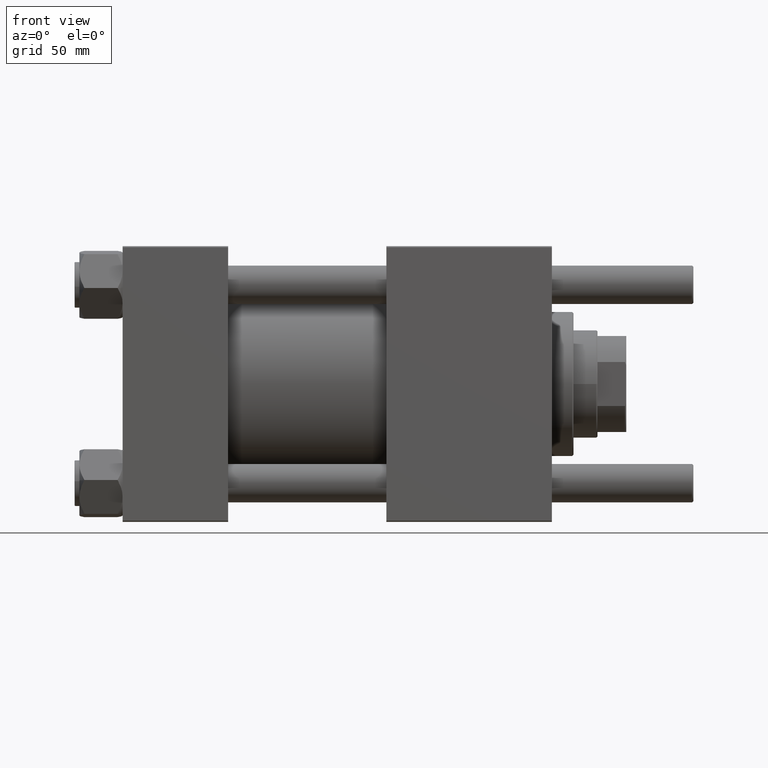
[diagram: clean part render]
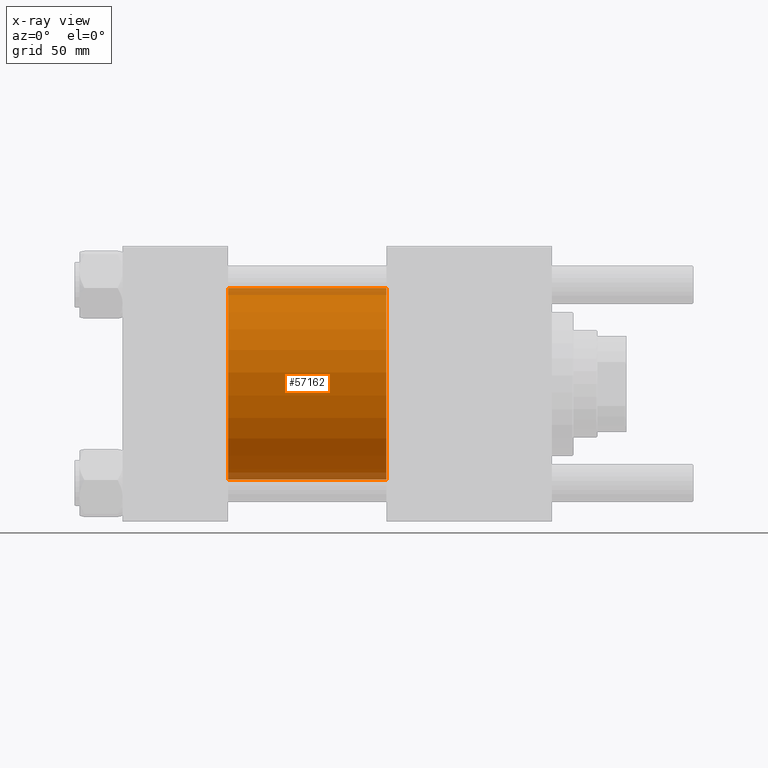
[diagram: x-ray — body ghosted, one internal face saturated and labeled with its STEP entity id]
A machine part, front view, then the same camera in x-ray: the body is ghosted and one INTERNAL B-rep face — a face not visible from any outside direction — is saturated and labeled: STEP entity #57162.
In plain terms, the highlighted cylindrical surface (partial cylindrical patch) has radius 40 mm, axis along (-1, -0, -0).
Its self-contained STEP definition (entity closure, byte-faithful):
#256 = CYLINDRICAL_SURFACE ( 'NONE', #6645, 40.00000000000000000 ) ;
#1978 = CARTESIAN_POINT ( 'NONE',  ( 44.00000000000000000, -2.602085213965210642E-15, 40.00000000000000000 ) ) ;
#3648 = DIRECTION ( 'NONE',  ( 0.000000000000000000, 0.000000000000000000, -1.000000000000000000 ) ) ;
#6645 = AXIS2_PLACEMENT_3D ( 'NONE', #13564, #48803, #30596 ) ;
#6667 = VERTEX_POINT ( 'NONE', #42830 ) ;
#8073 = EDGE_CURVE ( 'NONE', #53619, #9447, #32659, .T. ) ;
#8930 = CARTESIAN_POINT ( 'NONE',  ( 110.0000000000000000, -2.602085213965210642E-15, 40.00000000000000000 ) ) ;
#9447 = VERTEX_POINT ( 'NONE', #14194 ) ;
#11712 = EDGE_CURVE ( 'NONE', #6667, #53619, #16819, .T. ) ;
#12710 = FACE_OUTER_BOUND ( 'NONE', #37736, .T. ) ;
#13564 = CARTESIAN_POINT ( 'NONE',  ( 110.0000000000000000, -2.602085213965210642E-15, 0.000000000000000000 ) ) ;
#14194 = CARTESIAN_POINT ( 'NONE',  ( 44.00000000000000000, 2.296501982624201990E-15, -40.00000000000000000 ) ) ;
#15267 = VECTOR ( 'NONE', #43100, 1000.000000000000000 ) ;
#16662 = DIRECTION ( 'NONE',  ( 1.000000000000000000, 0.000000000000000000, 0.000000000000000000 ) ) ;
#16819 = LINE ( 'NONE', #8930, #15267 ) ;
#18638 = DIRECTION ( 'NONE',  ( 1.000000000000000000, 0.000000000000000000, 0.000000000000000000 ) ) ;
#23201 = CARTESIAN_POINT ( 'NONE',  ( 110.0000000000000000, 2.296501982624201990E-15, -40.00000000000000000 ) ) ;
#23816 = DIRECTION ( 'NONE',  ( 0.000000000000000000, 0.000000000000000000, -1.000000000000000000 ) ) ;
#27526 = EDGE_CURVE ( 'NONE', #6667, #50056, #54385, .T. ) ;
#29432 = AXIS2_PLACEMENT_3D ( 'NONE', #53633, #18638, #23816 ) ;
#30596 = DIRECTION ( 'NONE',  ( 0.000000000000000000, 0.000000000000000000, 1.000000000000000000 ) ) ;
#32149 = LINE ( 'NONE', #23201, #40639 ) ;
#32659 = CIRCLE ( 'NONE', #40058, 40.00000000000000000 ) ;
#37736 = EDGE_LOOP ( 'NONE', ( #40084, #44721, #47605, #39034 ) ) ;
#39034 = ORIENTED_EDGE ( 'NONE', *, *, #11712, .F. ) ;
#40058 = AXIS2_PLACEMENT_3D ( 'NONE', #43233, #16662, #3648 ) ;
#40084 = ORIENTED_EDGE ( 'NONE', *, *, #27526, .T. ) ;
#40639 = VECTOR ( 'NONE', #40827, 1000.000000000000000 ) ;
#40827 = DIRECTION ( 'NONE',  ( -1.000000000000000000, -0.000000000000000000, -0.000000000000000000 ) ) ;
#42830 = CARTESIAN_POINT ( 'NONE',  ( 110.0000000000000000, -2.602085213965210642E-15, 40.00000000000000000 ) ) ;
#43100 = DIRECTION ( 'NONE',  ( -1.000000000000000000, -0.000000000000000000, -0.000000000000000000 ) ) ;
#43233 = CARTESIAN_POINT ( 'NONE',  ( 44.00000000000000000, -2.602085213965210642E-15, 0.000000000000000000 ) ) ;
#44721 = ORIENTED_EDGE ( 'NONE', *, *, #50964, .T. ) ;
#47605 = ORIENTED_EDGE ( 'NONE', *, *, #8073, .F. ) ;
#48803 = DIRECTION ( 'NONE',  ( -1.000000000000000000, -0.000000000000000000, -0.000000000000000000 ) ) ;
#50056 = VERTEX_POINT ( 'NONE', #54131 ) ;
#50964 = EDGE_CURVE ( 'NONE', #50056, #9447, #32149, .T. ) ;
#53619 = VERTEX_POINT ( 'NONE', #1978 ) ;
#53633 = CARTESIAN_POINT ( 'NONE',  ( 110.0000000000000000, -2.602085213965210642E-15, 0.000000000000000000 ) ) ;
#54131 = CARTESIAN_POINT ( 'NONE',  ( 110.0000000000000000, 2.296501982624201990E-15, -40.00000000000000000 ) ) ;
#54385 = CIRCLE ( 'NONE', #29432, 40.00000000000000000 ) ;
#57162 = ADVANCED_FACE ( 'NONE', ( #12710 ), #256, .F. ) ;